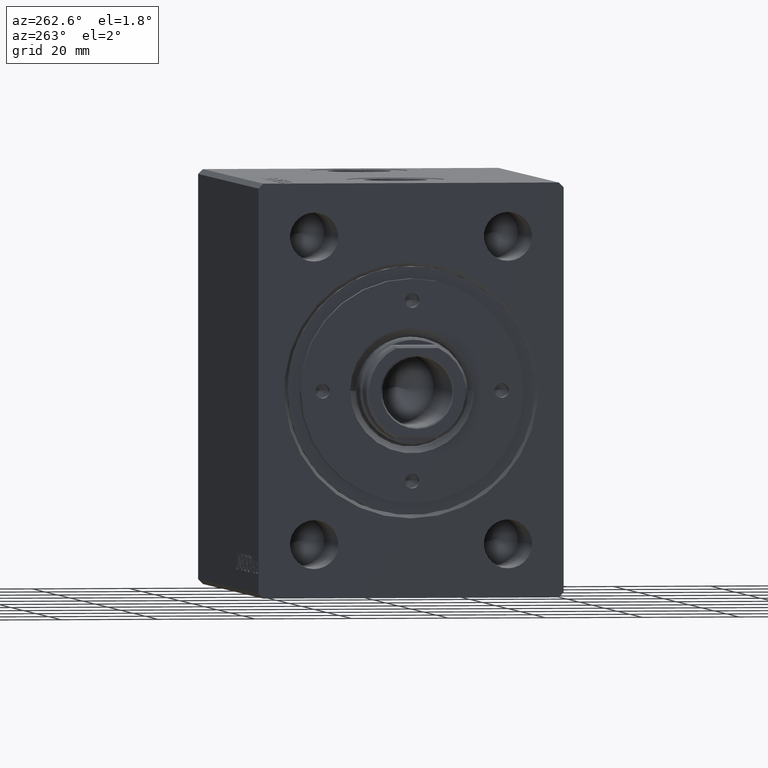
[diagram: clean part render]
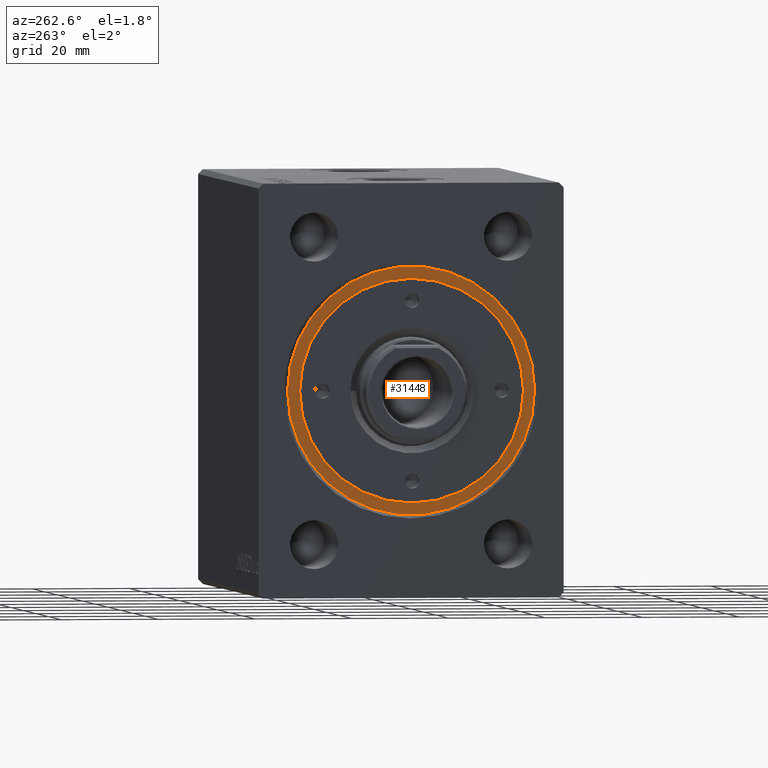
[diagram: same view with one face highlighted and labeled with its STEP entity id]
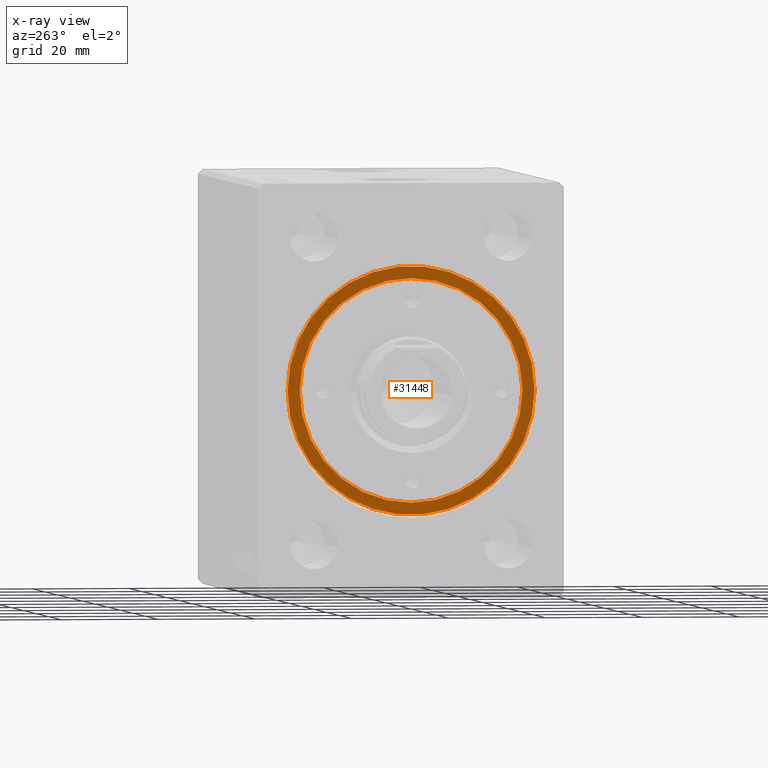
[diagram: x-ray of the same camera — body ghosted, the highlighted face saturated]
A machine part, auxiliary view. The second image highlights one B-rep face of the part: STEP entity #31448.
The next image is the same camera in x-ray: the body ghosted, the highlighted face saturated — about 0% of this face is hidden behind the body in this view.
In plain terms, the highlighted planar face has unit normal (-1, 0, 0).
Its self-contained STEP definition (entity closure, byte-faithful):
#1888 = DIRECTION ( 'NONE',  ( 1.000000000000000000, 0.000000000000000000, 0.000000000000000000 ) ) ;
#2200 = DIRECTION ( 'NONE',  ( 1.000000000000000000, 0.000000000000000000, 0.000000000000000000 ) ) ;
#2771 = FACE_OUTER_BOUND ( 'NONE', #10553, .T. ) ;
#5223 = DIRECTION ( 'NONE',  ( 0.000000000000000000, 0.000000000000000000, 1.000000000000000000 ) ) ;
#5633 = DIRECTION ( 'NONE',  ( 0.000000000000000000, 0.000000000000000000, 1.000000000000000000 ) ) ;
#5893 = FACE_BOUND ( 'NONE', #30735, .T. ) ;
#5988 = VERTEX_POINT ( 'NONE', #25142 ) ;
#6887 = VERTEX_POINT ( 'NONE', #10414 ) ;
#7110 = AXIS2_PLACEMENT_3D ( 'NONE', #15994, #8436, #2200 ) ;
#8436 = DIRECTION ( 'NONE',  ( 0.000000000000000000, 0.000000000000000000, 1.000000000000000000 ) ) ;
#9003 = ORIENTED_EDGE ( 'NONE', *, *, #29386, .T. ) ;
#9078 = EDGE_CURVE ( 'NONE', #6887, #12731, #17929, .T. ) ;
#10414 = CARTESIAN_POINT ( 'NONE',  ( -25.50000000000000000, 0.000000000000000000, 71.00000000000000000 ) ) ;
#10553 = EDGE_LOOP ( 'NONE', ( #13437, #9003 ) ) ;
#11712 = AXIS2_PLACEMENT_3D ( 'NONE', #15916, #39736, #19691 ) ;
#12731 = VERTEX_POINT ( 'NONE', #32652 ) ;
#13437 = ORIENTED_EDGE ( 'NONE', *, *, #9078, .T. ) ;
#15676 = AXIS2_PLACEMENT_3D ( 'NONE', #22115, #5633, #43058 ) ;
#15916 = CARTESIAN_POINT ( 'NONE',  ( 0.000000000000000000, 0.000000000000000000, 71.00000000000000000 ) ) ;
#15994 = CARTESIAN_POINT ( 'NONE',  ( 0.000000000000000000, 0.000000000000000000, 71.00000000000000000 ) ) ;
#16135 = PLANE ( 'NONE',  #11712 ) ;
#17918 = EDGE_CURVE ( 'NONE', #20663, #5988, #42014, .T. ) ;
#17929 = CIRCLE ( 'NONE', #23624, 25.50000000000000000 ) ;
#19574 = EDGE_CURVE ( 'NONE', #5988, #20663, #25606, .T. ) ;
#19691 = DIRECTION ( 'NONE',  ( 1.000000000000000000, 0.000000000000000000, -0.000000000000000000 ) ) ;
#20663 = VERTEX_POINT ( 'NONE', #22074 ) ;
#22074 = CARTESIAN_POINT ( 'NONE',  ( -23.00000000000000000, 0.000000000000000000, 71.00000000000000000 ) ) ;
#22115 = CARTESIAN_POINT ( 'NONE',  ( 0.000000000000000000, 0.000000000000000000, 71.00000000000000000 ) ) ;
#22321 = CIRCLE ( 'NONE', #28023, 25.50000000000000000 ) ;
#23624 = AXIS2_PLACEMENT_3D ( 'NONE', #32423, #42255, #28658 ) ;
#25142 = CARTESIAN_POINT ( 'NONE',  ( 23.00000000000000000, 2.816687638038912352E-15, 71.00000000000000000 ) ) ;
#25606 = CIRCLE ( 'NONE', #7110, 23.00000000000000000 ) ;
#28023 = AXIS2_PLACEMENT_3D ( 'NONE', #32382, #5223, #1888 ) ;
#28658 = DIRECTION ( 'NONE',  ( 1.000000000000000000, 0.000000000000000000, 0.000000000000000000 ) ) ;
#29386 = EDGE_CURVE ( 'NONE', #12731, #6887, #22321, .T. ) ;
#30735 = EDGE_LOOP ( 'NONE', ( #38212, #33764 ) ) ;
#31448 = ADVANCED_FACE ( 'NONE', ( #5893, #2771 ), #16135, .T. ) ;
#32382 = CARTESIAN_POINT ( 'NONE',  ( 0.000000000000000000, 0.000000000000000000, 71.00000000000000000 ) ) ;
#32423 = CARTESIAN_POINT ( 'NONE',  ( 0.000000000000000000, 0.000000000000000000, 71.00000000000000000 ) ) ;
#32652 = CARTESIAN_POINT ( 'NONE',  ( 25.50000000000000000, 3.122849337825750222E-15, 71.00000000000000000 ) ) ;
#33764 = ORIENTED_EDGE ( 'NONE', *, *, #19574, .F. ) ;
#38212 = ORIENTED_EDGE ( 'NONE', *, *, #17918, .F. ) ;
#39736 = DIRECTION ( 'NONE',  ( 0.000000000000000000, 0.000000000000000000, 1.000000000000000000 ) ) ;
#42014 = CIRCLE ( 'NONE', #15676, 23.00000000000000000 ) ;
#42255 = DIRECTION ( 'NONE',  ( 0.000000000000000000, 0.000000000000000000, 1.000000000000000000 ) ) ;
#43058 = DIRECTION ( 'NONE',  ( 1.000000000000000000, 0.000000000000000000, 0.000000000000000000 ) ) ;